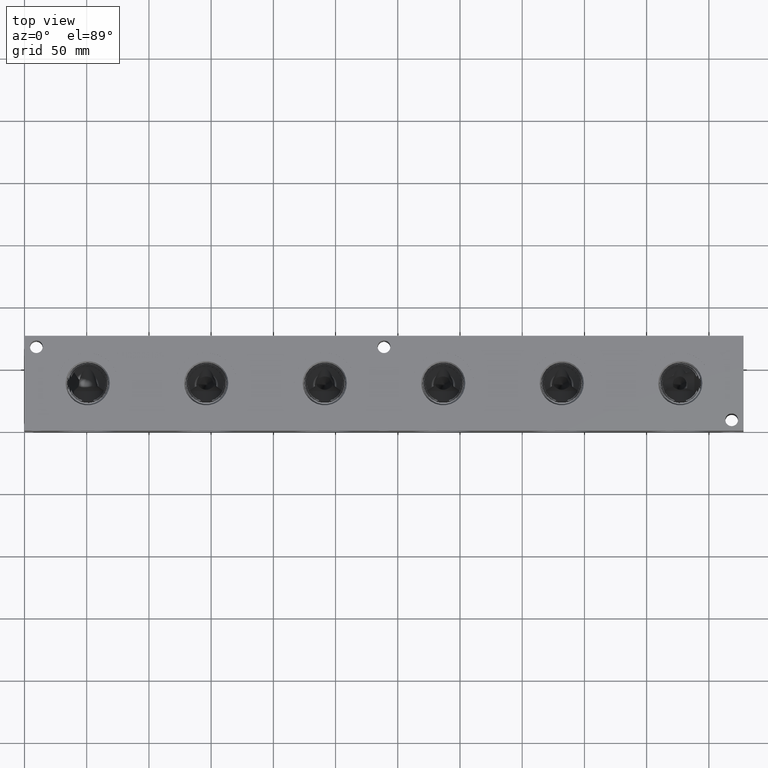
[diagram: clean part render]
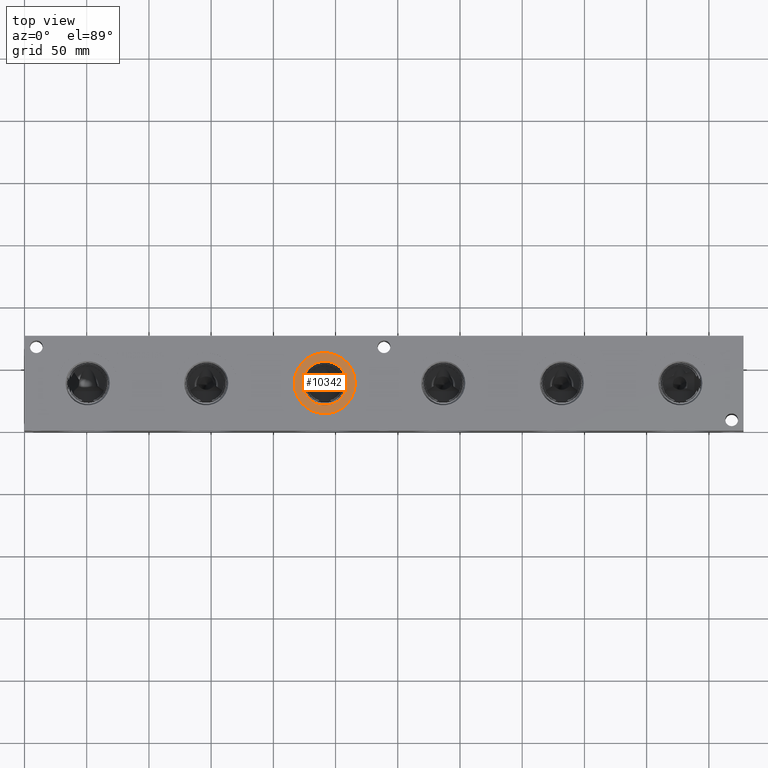
[diagram: same view with one face highlighted and labeled with its STEP entity id]
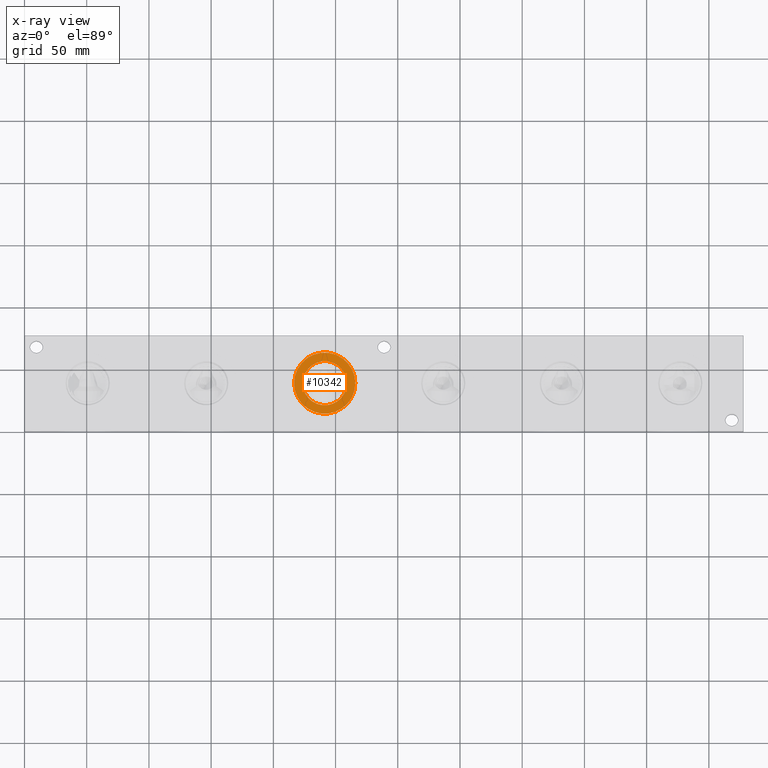
[diagram: x-ray of the same camera — body ghosted, the highlighted face saturated]
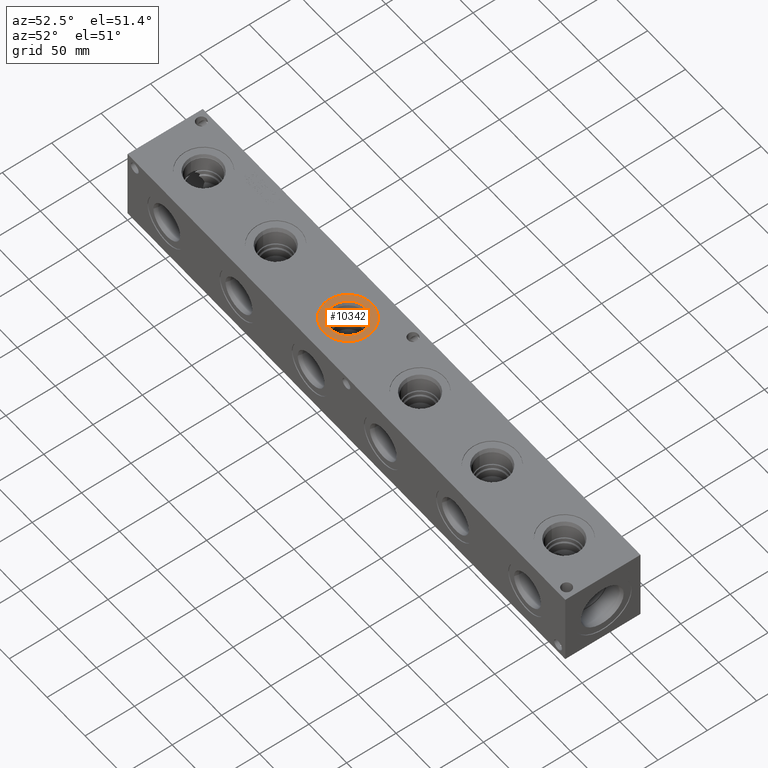
[diagram: same view with one face highlighted and labeled with its STEP entity id]
A machine part, top view. The second image highlights one B-rep face of the part: STEP entity #10342.
The next image is the same camera in x-ray: the body ghosted, the highlighted face saturated — about 0% of this face is hidden behind the body in this view.
A second angle (auxiliary view) of the same face is appended — the face is thin or edge-on in the first view.
In plain terms, the highlighted planar face has unit normal (0, 0, 1).
Its self-contained STEP definition (entity closure, byte-faithful):
#534=CIRCLE('',#11104,24.5618);
#535=CIRCLE('',#11105,24.5618);
#536=CIRCLE('',#11106,17.7546);
#640=FACE_BOUND('',#2217,.T.);
#1613=FACE_OUTER_BOUND('',#2216,.T.);
#2216=EDGE_LOOP('',(#9034,#9035));
#2217=EDGE_LOOP('',(#9036));
#4777=VERTEX_POINT('',#18600);
#4778=VERTEX_POINT('',#18601);
#4779=VERTEX_POINT('',#18604);
#6227=EDGE_CURVE('',#4777,#4778,#534,.T.);
#6228=EDGE_CURVE('',#4778,#4777,#535,.T.);
#6229=EDGE_CURVE('',#4779,#4779,#536,.T.);
#9034=ORIENTED_EDGE('',*,*,#6227,.T.);
#9035=ORIENTED_EDGE('',*,*,#6228,.T.);
#9036=ORIENTED_EDGE('',*,*,#6229,.F.);
#9508=PLANE('',#11103);
#10342=ADVANCED_FACE('',(#1613,#640),#9508,.T.);
#11103=AXIS2_PLACEMENT_3D('',#18599,#13357,#13358);
#11104=AXIS2_PLACEMENT_3D('',#18602,#13359,#13360);
#11105=AXIS2_PLACEMENT_3D('',#18603,#13361,#13362);
#11106=AXIS2_PLACEMENT_3D('',#18605,#13363,#13364);
#13357=DIRECTION('center_axis',(0.,0.,1.));
#13358=DIRECTION('ref_axis',(1.,0.,0.));
#13359=DIRECTION('center_axis',(0.,0.,1.));
#13360=DIRECTION('ref_axis',(1.,0.,0.));
#13361=DIRECTION('center_axis',(0.,0.,1.));
#13362=DIRECTION('ref_axis',(1.,0.,0.));
#13363=DIRECTION('center_axis',(0.,0.,1.));
#13364=DIRECTION('ref_axis',(1.,0.,0.));
#18599=CARTESIAN_POINT('Origin',(241.3,38.1,75.4126));
#18600=CARTESIAN_POINT('',(265.8618,38.1,75.4126));
#18601=CARTESIAN_POINT('',(216.7382,38.1,75.4126));
#18602=CARTESIAN_POINT('Origin',(241.3,38.1,75.4126));
#18603=CARTESIAN_POINT('Origin',(241.3,38.1,75.4126));
#18604=CARTESIAN_POINT('',(223.5454,38.1,75.4126));
#18605=CARTESIAN_POINT('Origin',(241.3,38.1,75.4126));